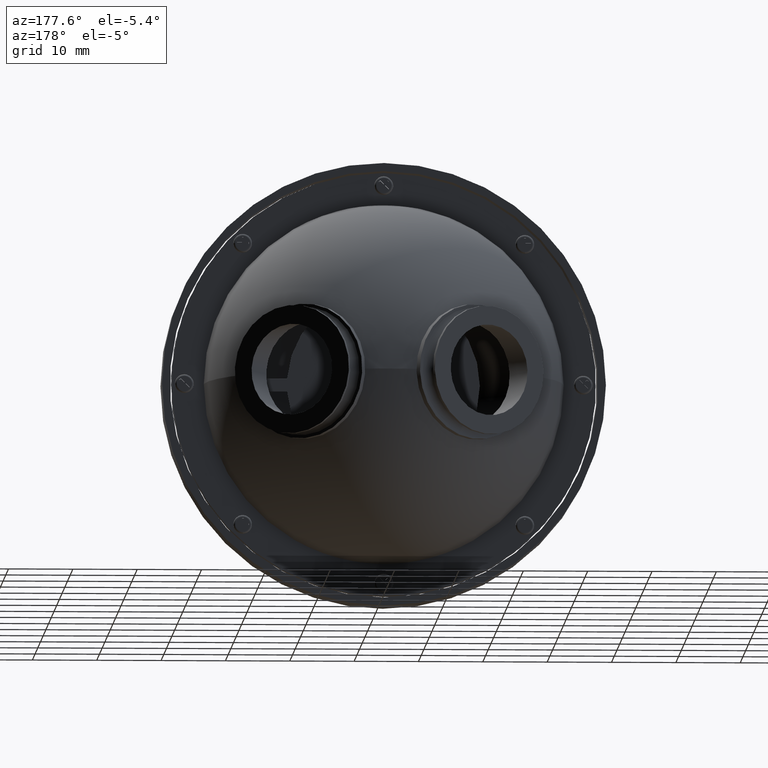
[diagram: clean part render]
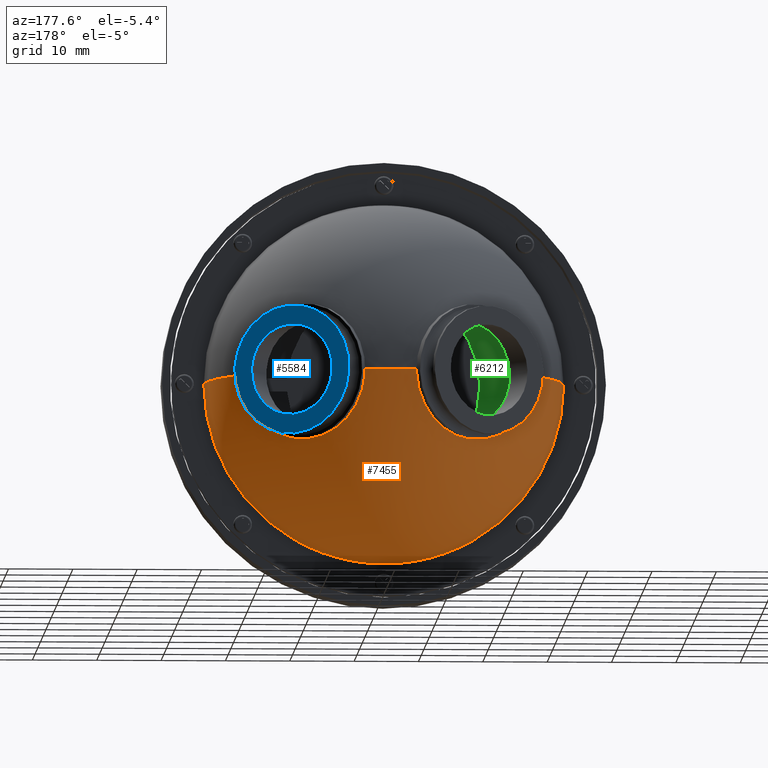
[diagram: same view with three faces highlighted in distinct colors, each labeled with its STEP entity id]
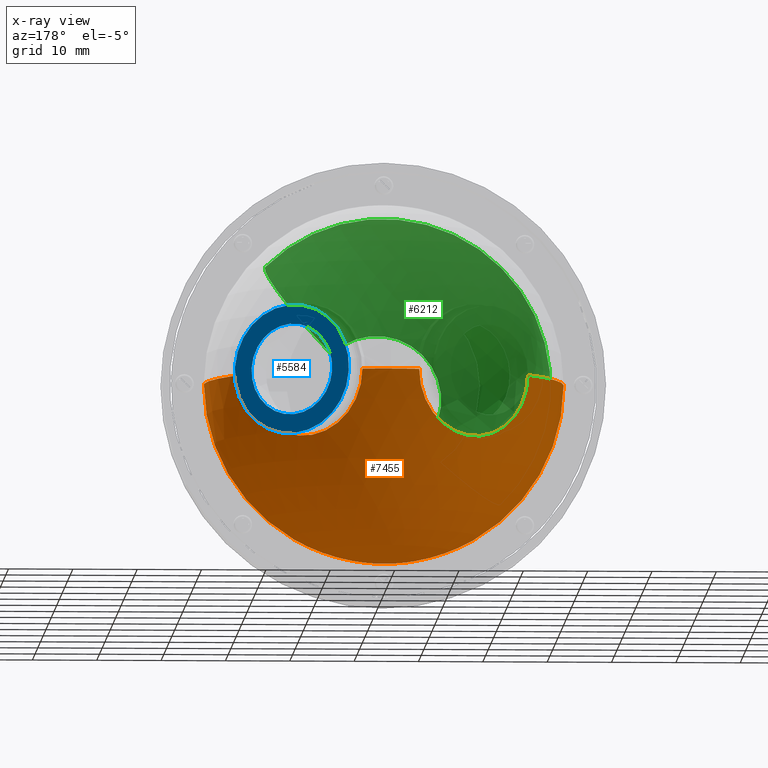
[diagram: x-ray of the same camera — body ghosted, the three highlighted faces saturated]
A machine part, auxiliary view with three faces highlighted in distinct colors.
The next image is the same camera in x-ray (body ghosted, the three faces saturated) — at least one of them is partly hidden behind the body in this view.
Their STEP definitions:

[orange] entity #7455 — the highlighted spherical surface has radius 28 mm.
#7 = VERTEX_POINT ( 'NONE', #3384 ) ;
#126 = DIRECTION ( 'NONE',  ( 0.8660254037844400399, -0.4999999999999976685, 0.000000000000000000 ) ) ;
#177 = DIRECTION ( 'NONE',  ( 1.000000000000000000, 0.000000000000000000, -1.224646799147353207E-16 ) ) ;
#181 = EDGE_CURVE ( 'NONE', #4169, #5608, #2011, .T. ) ;
#248 = AXIS2_PLACEMENT_3D ( 'NONE', #6617, #5382, #126 ) ;
#863 = DIRECTION ( 'NONE',  ( 0.000000000000000000, 0.000000000000000000, -1.000000000000000000 ) ) ;
#969 = VERTEX_POINT ( 'NONE', #1597 ) ;
#1042 = VERTEX_POINT ( 'NONE', #1250 ) ;
#1053 = VERTEX_POINT ( 'NONE', #1897 ) ;
#1208 = CIRCLE ( 'NONE', #248, 10.00000000000000711 ) ;
#1250 = CARTESIAN_POINT ( 'NONE',  ( 4.067576156830836176, 9.738637418628080411, 5.408582529792328972E-16 ) ) ;
#1386 = DIRECTION ( 'NONE',  ( 0.000000000000000000, 0.000000000000000000, 1.000000000000000000 ) ) ;
#1595 = ORIENTED_EDGE ( 'NONE', *, *, #6713, .T. ) ;
#1597 = CARTESIAN_POINT ( 'NONE',  ( -13.25293191885799615, -0.2613625813718163382, 2.662008730429053827E-15 ) ) ;
#1643 = DIRECTION ( 'NONE',  ( 0.000000000000000000, 0.000000000000000000, -1.000000000000000000 ) ) ;
#1897 = CARTESIAN_POINT ( 'NONE',  ( -19.47577361042331745, -16.41086588718419748, 3.424087046346671680E-15 ) ) ;
#1992 = AXIS2_PLACEMENT_3D ( 'NONE', #3526, #5157, #3423 ) ;
#2011 = CIRCLE ( 'NONE', #6920, 28.00000000000000000 ) ;
#2014 = DIRECTION ( 'NONE',  ( -1.000000000000000000, 0.000000000000000000, 0.000000000000000000 ) ) ;
#2069 = DIRECTION ( 'NONE',  ( 1.000000000000000000, 0.000000000000000000, 0.000000000000000000 ) ) ;
#2418 = AXIS2_PLACEMENT_3D ( 'NONE', #2646, #6687, #5492 ) ;
#2438 = DIRECTION ( 'NONE',  ( 1.224646799147353207E-16, -0.000000000000000000, 1.000000000000000000 ) ) ;
#2453 = ORIENTED_EDGE ( 'NONE', *, *, #7056, .F. ) ;
#2646 = CARTESIAN_POINT ( 'NONE',  ( -4.592677881013579544, 4.738637418628132814, 0.000000000000000000 ) ) ;
#2697 = EDGE_CURVE ( 'NONE', #5608, #1053, #4691, .T. ) ;
#2728 = DIRECTION ( 'NONE',  ( -1.000000000000000000, 0.000000000000000000, 0.000000000000000000 ) ) ;
#3274 = CIRCLE ( 'NONE', #2418, 10.00000000000000178 ) ;
#3384 = CARTESIAN_POINT ( 'NONE',  ( 8.484018949608309157, 10.08913411281580075, 0.000000000000000000 ) ) ;
#3423 = DIRECTION ( 'NONE',  ( 0.000000000000000000, 0.000000000000000000, -1.000000000000000000 ) ) ;
#3526 = CARTESIAN_POINT ( 'NONE',  ( 8.484018949608307381, -16.41086588718419748, 0.000000000000000000 ) ) ;
#3606 = VERTEX_POINT ( 'NONE', #4075 ) ;
#4019 = AXIS2_PLACEMENT_3D ( 'NONE', #7289, #863, #2014 ) ;
#4075 = CARTESIAN_POINT ( 'NONE',  ( 12.90046174238585230, 9.738637418628066200, 0.000000000000000000 ) ) ;
#4169 = VERTEX_POINT ( 'NONE', #6462 ) ;
#4646 = CARTESIAN_POINT ( 'NONE',  ( 8.484018949608307381, -17.91086588718419748, 0.000000000000000000 ) ) ;
#4691 = CIRCLE ( 'NONE', #1992, 27.95979256003163016 ) ;
#4721 = ORIENTED_EDGE ( 'NONE', *, *, #4779, .T. ) ;
#4779 = EDGE_CURVE ( 'NONE', #969, #1042, #3274, .T. ) ;
#4797 = ORIENTED_EDGE ( 'NONE', *, *, #2697, .T. ) ;
#5076 = DIRECTION ( 'NONE',  ( 1.000000000000000000, 0.000000000000000000, -1.224646799147353207E-16 ) ) ;
#5136 = CIRCLE ( 'NONE', #5638, 28.00000000000000000 ) ;
#5157 = DIRECTION ( 'NONE',  ( -0.000000000000000000, 1.000000000000000000, -0.000000000000000000 ) ) ;
#5220 = ORIENTED_EDGE ( 'NONE', *, *, #7271, .F. ) ;
#5229 = CARTESIAN_POINT ( 'NONE',  ( 36.44381150963993576, -16.41086588718419748, 0.000000000000000000 ) ) ;
#5382 = DIRECTION ( 'NONE',  ( 0.4999999999999975020, 0.8660254037844400399, 0.000000000000000000 ) ) ;
#5393 = CARTESIAN_POINT ( 'NONE',  ( 8.484018949608307381, -17.91086588718419748, 0.000000000000000000 ) ) ;
#5453 = FACE_OUTER_BOUND ( 'NONE', #5733, .T. ) ;
#5492 = DIRECTION ( 'NONE',  ( 0.8660254037844415942, 0.4999999999999947820, 0.000000000000000000 ) ) ;
#5523 = AXIS2_PLACEMENT_3D ( 'NONE', #6763, #1386, #2069 ) ;
#5556 = ORIENTED_EDGE ( 'NONE', *, *, #6544, .F. ) ;
#5608 = VERTEX_POINT ( 'NONE', #5229 ) ;
#5638 = AXIS2_PLACEMENT_3D ( 'NONE', #5393, #2438, #177 ) ;
#5643 = CIRCLE ( 'NONE', #5883, 28.00000000000000000 ) ;
#5733 = EDGE_LOOP ( 'NONE', ( #5556, #1595, #2453, #5877, #4797, #5220, #4721 ) ) ;
#5877 = ORIENTED_EDGE ( 'NONE', *, *, #181, .T. ) ;
#5883 = AXIS2_PLACEMENT_3D ( 'NONE', #4646, #6955, #5076 ) ;
#6180 = SPHERICAL_SURFACE ( 'NONE', #5523, 28.00000000000000000 ) ;
#6369 = CIRCLE ( 'NONE', #4019, 28.00000000000000000 ) ;
#6462 = CARTESIAN_POINT ( 'NONE',  ( 30.22096981807467131, -0.2613625813718961632, 0.000000000000000000 ) ) ;
#6544 = EDGE_CURVE ( 'NONE', #7, #1042, #5136, .T. ) ;
#6617 = CARTESIAN_POINT ( 'NONE',  ( 21.56071578023026447, 4.738637418628083964, 0.000000000000000000 ) ) ;
#6687 = DIRECTION ( 'NONE',  ( 0.4999999999999948930, -0.8660254037844417052, -0.000000000000000000 ) ) ;
#6713 = EDGE_CURVE ( 'NONE', #7, #3606, #6369, .T. ) ;
#6763 = CARTESIAN_POINT ( 'NONE',  ( 8.484018949608307381, -17.91086588718419748, 0.000000000000000000 ) ) ;
#6920 = AXIS2_PLACEMENT_3D ( 'NONE', #7453, #1643, #2728 ) ;
#6955 = DIRECTION ( 'NONE',  ( 1.224646799147353207E-16, -0.000000000000000000, 1.000000000000000000 ) ) ;
#7056 = EDGE_CURVE ( 'NONE', #4169, #3606, #1208, .T. ) ;
#7271 = EDGE_CURVE ( 'NONE', #969, #1053, #5643, .T. ) ;
#7289 = CARTESIAN_POINT ( 'NONE',  ( 8.484018949608307381, -17.91086588718419748, 0.000000000000000000 ) ) ;
#7453 = CARTESIAN_POINT ( 'NONE',  ( 8.484018949608307381, -17.91086588718419748, 0.000000000000000000 ) ) ;
#7455 = ADVANCED_FACE ( 'NONE', ( #5453 ), #6180, .T. ) ;

[blue] entity #5584 — the highlighted planar face has unit normal (0.5, 0.866, 0).
#451 = VERTEX_POINT ( 'NONE', #1903 ) ;
#521 = PLANE ( 'NONE',  #3138 ) ;
#549 = EDGE_LOOP ( 'NONE', ( #7123, #5693 ) ) ;
#709 = ORIENTED_EDGE ( 'NONE', *, *, #6637, .T. ) ;
#981 = AXIS2_PLACEMENT_3D ( 'NONE', #5985, #1830, #4165 ) ;
#1011 = FACE_OUTER_BOUND ( 'NONE', #2967, .T. ) ;
#1510 = CARTESIAN_POINT ( 'NONE',  ( 24.12399765436822108, 8.454878361292269773, 7.055017501242880407 ) ) ;
#1547 = VERTEX_POINT ( 'NONE', #3984 ) ;
#1815 = CIRCLE ( 'NONE', #6119, 10.00000000000000000 ) ;
#1830 = DIRECTION ( 'NONE',  ( 0.4999999999999975575, 0.8660254037844400399, -3.081487911019577365E-33 ) ) ;
#1903 = CARTESIAN_POINT ( 'NONE',  ( 23.36724295536354745, 8.891790890473130204, -9.986880183761408958 ) ) ;
#1971 = CARTESIAN_POINT ( 'NONE',  ( 23.81071578023024315, 8.635751735658059758, 7.305756496477038059E-32 ) ) ;
#2422 = AXIS2_PLACEMENT_3D ( 'NONE', #2543, #7237, #6493 ) ;
#2543 = CARTESIAN_POINT ( 'NONE',  ( 23.81071578023024315, 8.635751735658059758, 7.305756496477038059E-32 ) ) ;
#2684 = CARTESIAN_POINT ( 'NONE',  ( 23.49743390609227234, 8.816625110023846190, -7.055017501242880407 ) ) ;
#2967 = EDGE_LOOP ( 'NONE', ( #4765, #709 ) ) ;
#3138 = AXIS2_PLACEMENT_3D ( 'NONE', #4539, #5736, #4581 ) ;
#3290 = CIRCLE ( 'NONE', #7600, 7.064285714285714057 ) ;
#3506 = CARTESIAN_POINT ( 'NONE',  ( 23.81071578023024315, 8.635751735658059758, 7.305756496477038059E-32 ) ) ;
#3651 = DIRECTION ( 'NONE',  ( 0.04434728248666960915, -0.02560391548150700580, 0.9986880183761408514 ) ) ;
#3984 = CARTESIAN_POINT ( 'NONE',  ( 24.25418860509694596, 8.379712580842989311, 9.986880183761408958 ) ) ;
#4165 = DIRECTION ( 'NONE',  ( 0.04434728248666960915, -0.02560391548150700580, 0.9986880183761408514 ) ) ;
#4276 = EDGE_CURVE ( 'NONE', #7519, #7121, #7344, .T. ) ;
#4539 = CARTESIAN_POINT ( 'NONE',  ( 23.81071578023024315, 8.635751735658059758, 7.305756496477038059E-32 ) ) ;
#4581 = DIRECTION ( 'NONE',  ( 0.04434728248666973405, -0.02560391548150698152, 0.9986880183761410734 ) ) ;
#4657 = CIRCLE ( 'NONE', #981, 10.00000000000000000 ) ;
#4765 = ORIENTED_EDGE ( 'NONE', *, *, #7414, .T. ) ;
#5198 = FACE_BOUND ( 'NONE', #549, .T. ) ;
#5279 = DIRECTION ( 'NONE',  ( 0.04434728248666949812, -0.02560391548150691907, 0.9986880183761409624 ) ) ;
#5437 = DIRECTION ( 'NONE',  ( 0.4999999999999975575, 0.8660254037844400399, -3.081487911019577365E-33 ) ) ;
#5584 = ADVANCED_FACE ( 'NONE', ( #5198, #1011 ), #521, .T. ) ;
#5693 = ORIENTED_EDGE ( 'NONE', *, *, #6410, .T. ) ;
#5736 = DIRECTION ( 'NONE',  ( 0.4999999999999975020, 0.8660254037844400399, 0.000000000000000000 ) ) ;
#5985 = CARTESIAN_POINT ( 'NONE',  ( 23.81071578023024315, 8.635751735658059758, 7.305756496477038059E-32 ) ) ;
#6119 = AXIS2_PLACEMENT_3D ( 'NONE', #1971, #5437, #3651 ) ;
#6410 = EDGE_CURVE ( 'NONE', #7121, #7519, #3290, .T. ) ;
#6493 = DIRECTION ( 'NONE',  ( 0.04434728248667049039, -0.02560391548150741173, 0.9986880183761409624 ) ) ;
#6637 = EDGE_CURVE ( 'NONE', #1547, #451, #1815, .T. ) ;
#7121 = VERTEX_POINT ( 'NONE', #1510 ) ;
#7123 = ORIENTED_EDGE ( 'NONE', *, *, #4276, .T. ) ;
#7237 = DIRECTION ( 'NONE',  ( -0.4999999999999975575, -0.8660254037844400399, 3.081487911019577365E-33 ) ) ;
#7344 = CIRCLE ( 'NONE', #2422, 7.064285714285714057 ) ;
#7414 = EDGE_CURVE ( 'NONE', #451, #1547, #4657, .T. ) ;
#7519 = VERTEX_POINT ( 'NONE', #2684 ) ;
#7597 = DIRECTION ( 'NONE',  ( -0.4999999999999975575, -0.8660254037844400399, 3.081487911019577365E-33 ) ) ;
#7600 = AXIS2_PLACEMENT_3D ( 'NONE', #3506, #7597, #5279 ) ;

[green] entity #6212 — the highlighted spherical surface has radius 26 mm.
#49 = ORIENTED_EDGE ( 'NONE', *, *, #3404, .T. ) ;
#270 = EDGE_CURVE ( 'NONE', #2007, #3450, #3237, .T. ) ;
#304 = DIRECTION ( 'NONE',  ( 0.7071067811865364705, 0.000000000000000000, 0.7071067811865585639 ) ) ;
#353 = DIRECTION ( 'NONE',  ( 0.7071067811865586750, 0.000000000000000000, -0.7071067811865363595 ) ) ;
#450 = CARTESIAN_POINT ( 'NONE',  ( -9.900757361241653953, -18.31086588718419605, -18.38477631085054398 ) ) ;
#615 = VERTEX_POINT ( 'NONE', #1530 ) ;
#655 = AXIS2_PLACEMENT_3D ( 'NONE', #6255, #353, #5143 ) ;
#1137 = CARTESIAN_POINT ( 'NONE',  ( 8.484018949608307381, -42.31086588718420671, 0.000000000000000000 ) ) ;
#1376 = AXIS2_PLACEMENT_3D ( 'NONE', #1137, #5896, #3440 ) ;
#1402 = EDGE_CURVE ( 'NONE', #615, #4307, #2466, .T. ) ;
#1436 = ORIENTED_EDGE ( 'NONE', *, *, #1981, .T. ) ;
#1530 = CARTESIAN_POINT ( 'NONE',  ( 15.55508676147370650, -42.31086588718420671, 7.071067811865619390 ) ) ;
#1776 = CARTESIAN_POINT ( 'NONE',  ( 1.412951137742905150, -42.31086588718420671, -7.071067811865625607 ) ) ;
#1946 = CIRCLE ( 'NONE', #7233, 26.00000000000004619 ) ;
#1981 = EDGE_CURVE ( 'NONE', #615, #2767, #5788, .T. ) ;
#2007 = VERTEX_POINT ( 'NONE', #1776 ) ;
#2133 = EDGE_LOOP ( 'NONE', ( #1436, #49, #3467, #3959, #3455 ) ) ;
#2278 = DIRECTION ( 'NONE',  ( -0.7071067811865585639, 0.000000000000000000, 0.7071067811865365815 ) ) ;
#2466 = CIRCLE ( 'NONE', #6151, 26.00000000000000000 ) ;
#2602 = SPHERICAL_SURFACE ( 'NONE', #5507, 26.00000000000000355 ) ;
#2767 = VERTEX_POINT ( 'NONE', #6959 ) ;
#2782 = DIRECTION ( 'NONE',  ( -0.000000000000000000, -1.000000000000000000, -0.000000000000000000 ) ) ;
#3237 = CIRCLE ( 'NONE', #655, 26.00000000000000000 ) ;
#3404 = EDGE_CURVE ( 'NONE', #2767, #2007, #7376, .T. ) ;
#3440 = DIRECTION ( 'NONE',  ( -0.7071067811865585639, 0.000000000000000000, 0.7071067811865364705 ) ) ;
#3450 = VERTEX_POINT ( 'NONE', #450 ) ;
#3455 = ORIENTED_EDGE ( 'NONE', *, *, #1402, .F. ) ;
#3467 = ORIENTED_EDGE ( 'NONE', *, *, #270, .T. ) ;
#3883 = CARTESIAN_POINT ( 'NONE',  ( 8.484018949608307381, -42.31086588718420671, 0.000000000000000000 ) ) ;
#3959 = ORIENTED_EDGE ( 'NONE', *, *, #6827, .T. ) ;
#4071 = DIRECTION ( 'NONE',  ( 0.000000000000000000, 1.000000000000000000, 0.000000000000000000 ) ) ;
#4274 = FACE_OUTER_BOUND ( 'NONE', #2133, .T. ) ;
#4307 = VERTEX_POINT ( 'NONE', #4728 ) ;
#4728 = CARTESIAN_POINT ( 'NONE',  ( 26.86879526045827404, -18.31086588718419605, 18.38477631085053687 ) ) ;
#5035 = AXIS2_PLACEMENT_3D ( 'NONE', #3883, #2782, #6360 ) ;
#5143 = DIRECTION ( 'NONE',  ( -0.7071067811865364705, 0.000000000000000000, -0.7071067811865586750 ) ) ;
#5170 = DIRECTION ( 'NONE',  ( 0.7071067811865364705, 0.000000000000000000, 0.7071067811865585639 ) ) ;
#5207 = DIRECTION ( 'NONE',  ( -0.7071067811865585639, 0.000000000000000000, 0.7071067811865364705 ) ) ;
#5269 = CARTESIAN_POINT ( 'NONE',  ( 8.484018949608307381, -18.31086588718419605, 0.000000000000000000 ) ) ;
#5507 = AXIS2_PLACEMENT_3D ( 'NONE', #5598, #5562, #304 ) ;
#5562 = DIRECTION ( 'NONE',  ( 0.7071067811865585639, 0.000000000000000000, -0.7071067811865364705 ) ) ;
#5598 = CARTESIAN_POINT ( 'NONE',  ( 8.484018949608307381, -18.31086588718419605, 0.000000000000000000 ) ) ;
#5788 = CIRCLE ( 'NONE', #1376, 10.00000000000001776 ) ;
#5896 = DIRECTION ( 'NONE',  ( -0.000000000000000000, -1.000000000000000000, -0.000000000000000000 ) ) ;
#6151 = AXIS2_PLACEMENT_3D ( 'NONE', #7480, #5207, #5170 ) ;
#6212 = ADVANCED_FACE ( 'NONE', ( #4274 ), #2602, .F. ) ;
#6255 = CARTESIAN_POINT ( 'NONE',  ( 8.484018949608307381, -18.31086588718419605, 0.000000000000000000 ) ) ;
#6360 = DIRECTION ( 'NONE',  ( -0.7071067811865585639, 0.000000000000000000, 0.7071067811865364705 ) ) ;
#6827 = EDGE_CURVE ( 'NONE', #3450, #4307, #1946, .T. ) ;
#6959 = CARTESIAN_POINT ( 'NONE',  ( 1.412951137742722629, -42.31086588718420671, 7.071067811865365371 ) ) ;
#7233 = AXIS2_PLACEMENT_3D ( 'NONE', #5269, #4071, #2278 ) ;
#7376 = CIRCLE ( 'NONE', #5035, 10.00000000000001776 ) ;
#7480 = CARTESIAN_POINT ( 'NONE',  ( 8.484018949608307381, -18.31086588718419605, 0.000000000000000000 ) ) ;